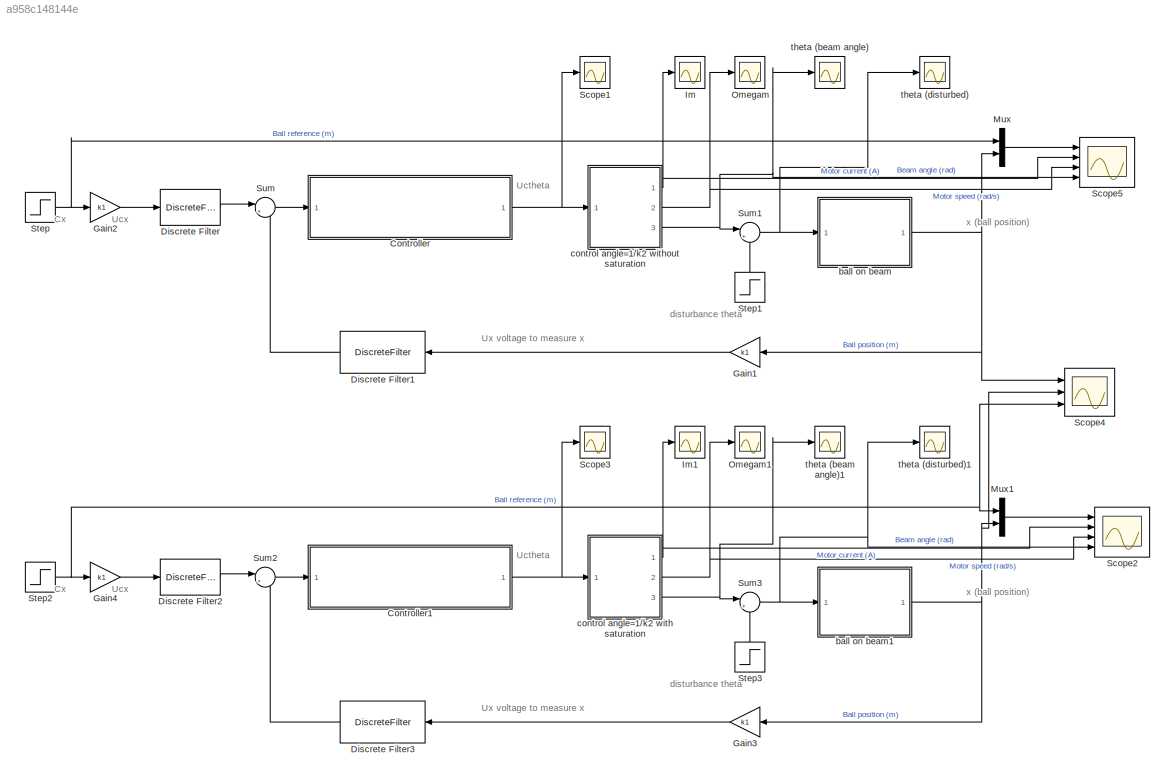
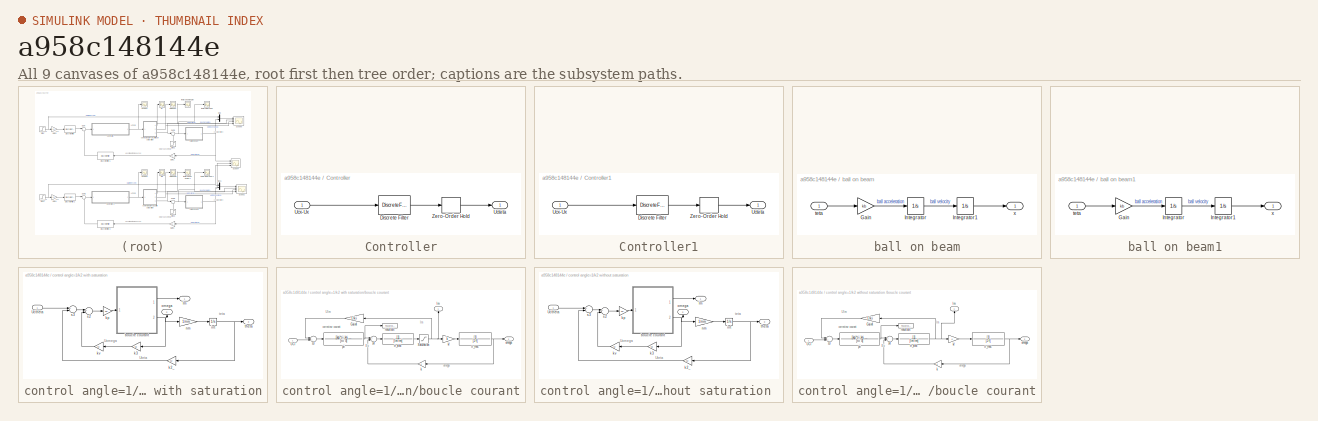
[diagram: thumbnail index - all 9 canvases of the model, root first then tree order]
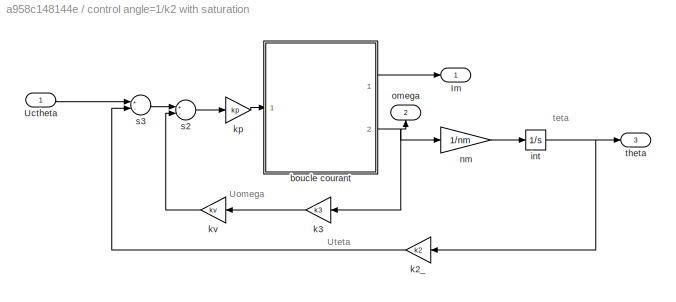
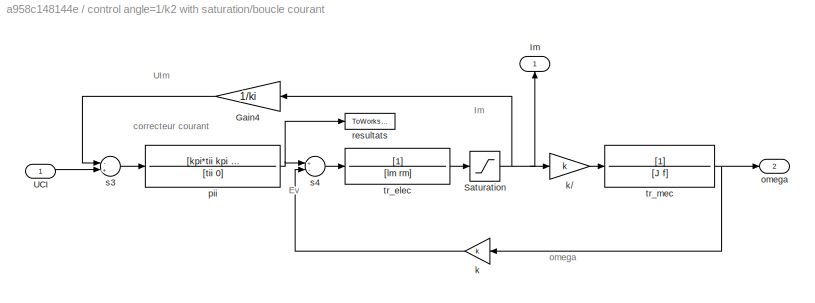
MODEL slx_a958c148144e
KIND model
CONFIG AbsTol = auto
CONFIG EnableMultiTasking = off
CONFIG FixedStep = auto
CONFIG MaxStep = auto
CONFIG MinStep = auto
CONFIG RelTol = 1e-3
CONFIG SampleTimeConstraint = Unconstrained
CONFIG Solver = VariableStepAuto
CONFIG SolverName = VariableStepAuto
CONFIG StartTime = 0.0
CONFIG StopTime = 20
BLOCK [SubSystem] Controller
  Ports = [1, 1]
  RequestExecContextInheritance = off
BLOCK [DiscreteFilter] Controller/Discrete Filter
  Denominator = [1 (s1-1) -s1]
  InputPortMap = u0
  Ports = [1, 1]
  SampleTime = Te
BLOCK [Outport] Controller/Ucteta
  IconDisplay = Port number
BLOCK [Inport] Controller/Ucx-Ux
  IconDisplay = Port number
BLOCK [ZeroOrderHold] Controller/Zero-Order Hold
  SampleTime = -1
BLOCK [SubSystem] Controller1
  Ports = [1, 1]
  RequestExecContextInheritance = off
BLOCK [DiscreteFilter] Controller1/Discrete Filter
  Denominator = [1 (s1-1) -s1]
  InputPortMap = u0
  Ports = [1, 1]
  SampleTime = Te
BLOCK [Outport] Controller1/Ucteta
  IconDisplay = Port number
BLOCK [Inport] Controller1/Ucx-Ux
  IconDisplay = Port number
BLOCK [ZeroOrderHold] Controller1/Zero-Order Hold
  SampleTime = -1
BLOCK [DiscreteFilter] Discrete Filter
  Denominator = [1]
  InputPortMap = u0
  Numerator = [T]
  Ports = [1, 1]
BLOCK [DiscreteFilter] Discrete Filter1
  Denominator = [1]
  InputPortMap = u0
  Numerator = [r0 r1 r2]
  Ports = [1, 1]
BLOCK [DiscreteFilter] Discrete Filter2
  Denominator = [1]
  InputPortMap = u0
  Numerator = [T]
  Ports = [1, 1]
BLOCK [DiscreteFilter] Discrete Filter3
  Denominator = [1]
  InputPortMap = u0
  Numerator = [r0 r1 r2]
  Ports = [1, 1]
BLOCK [Gain] Gain1
  Gain = k1
BLOCK [Gain] Gain2
  Gain = k1
BLOCK [Gain] Gain3
  Gain = k1
BLOCK [Gain] Gain4
  Gain = k1
BLOCK [Scope] Im
  Floating = off
  NumInputPorts = 1
  Ports = [1]
  ScopeSpecificationString = Simulink.scopes.TimeScopeBlockCfg('CurrentConfiguration', extmgr.ConfigurationSet(extmgr.Configuration('Core','General UI',true),extmgr.Configuration('Core','Source UI',true),extmgr.Configuration('Sources','WiredSimulink',true,'DataLoggingVariableName','ScopeData1'),extmgr.Configuration('Visuals','Time Domain',true,'SerializedDisplays',{struct('MinYLimReal','-25.09806','MaxYLimReal','19.77678','YL...<+1451ch>
BLOCK [Scope] Im1
  Floating = off
  NumInputPorts = 1
  Ports = [1]
  ScopeSpecificationString = Simulink.scopes.TimeScopeBlockCfg('CurrentConfiguration', extmgr.ConfigurationSet(extmgr.Configuration('Core','General UI',true),extmgr.Configuration('Core','Source UI',true),extmgr.Configuration('Sources','WiredSimulink',true,'DataLoggingVariableName','ScopeData1'),extmgr.Configuration('Visuals','Time Domain',true,'SerializedDisplays',{struct('MinYLimReal','-19.91116','MaxYLimReal','19.20046','YL...<+1452ch>
BLOCK [Mux] Mux
  DisplayOption = bar
  Inputs = 2
  Ports = [2, 1]
BLOCK [Mux] Mux1
  DisplayOption = bar
  Inputs = 2
  Ports = [2, 1]
BLOCK [Scope] Omegam
  Floating = off
  NumInputPorts = 1
  Ports = [1]
  ScopeSpecificationString = Simulink.scopes.TimeScopeBlockCfg('CurrentConfiguration', extmgr.ConfigurationSet(extmgr.Configuration('Core','General UI',true),extmgr.Configuration('Core','Source UI',true),extmgr.Configuration('Sources','WiredSimulink',true,'DataLoggingVariableName','ScopeData2'),extmgr.Configuration('Visuals','Time Domain',true,'SerializedDisplays',{struct('MinYLimReal','-15856.38817','MaxYLimReal','10059.9299...<+1435ch>
BLOCK [Scope] Omegam1
  Floating = off
  NumInputPorts = 1
  Ports = [1]
  ScopeSpecificationString = Simulink.scopes.TimeScopeBlockCfg('CurrentConfiguration', extmgr.ConfigurationSet(extmgr.Configuration('Core','General UI',true),extmgr.Configuration('Core','Source UI',true),extmgr.Configuration('Sources','WiredSimulink',true,'DataLoggingVariableName','ScopeData2'),extmgr.Configuration('Visuals','Time Domain',true,'SerializedDisplays',{struct('MinYLimReal','-15856.38817','MaxYLimReal','10059.9299...<+1435ch>
BLOCK [Scope] Scope1
  Floating = off
  NumInputPorts = 1
  Ports = [1]
  ScopeSpecificationString = Simulink.scopes.TimeScopeBlockCfg('CurrentConfiguration', extmgr.ConfigurationSet(extmgr.Configuration('Core','General UI',true,'FigureColor',[0 0 0]),extmgr.Configuration('Core','Source UI',true),extmgr.Configuration('Sources','WiredSimulink',true,'DataLoggingVariableName','ScopeData4'),extmgr.Configuration('Visuals','Time Domain',true,'SerializedDisplays',{struct('MinYLimReal','-2348.83617','Max...<+1575ch>
BLOCK [Scope] Scope2
  Floating = off
  NumInputPorts = 4
  Ports = [4]
  ScopeSpecificationString = Simulink.scopes.TimeScopeBlockCfg('CurrentConfiguration', extmgr.ConfigurationSet(extmgr.Configuration('Core','General UI',true,'FigureColor',[1 1 1]),extmgr.Configuration('Core','Source UI',true),extmgr.Configuration('Sources','WiredSimulink',true,'DataLoggingVariableName','ScopeData2'),extmgr.Configuration('Visuals','Time Domain',true,'SerializedDisplays',{struct('MinYLimReal','-0.01449','MaxYLi...<+4154ch>
BLOCK [Scope] Scope3
  Floating = off
  NumInputPorts = 1
  Ports = [1]
  ScopeSpecificationString = Simulink.scopes.TimeScopeBlockCfg('CurrentConfiguration', extmgr.ConfigurationSet(extmgr.Configuration('Core','General UI',true,'FigureColor',[0 0 0]),extmgr.Configuration('Core','Source UI',true),extmgr.Configuration('Sources','WiredSimulink',true,'DataLoggingVariableName','ScopeData4'),extmgr.Configuration('Visuals','Time Domain',true,'SerializedDisplays',{struct('MinYLimReal','-2348.83617','Max...<+1575ch>
BLOCK [Scope] Scope4
  Floating = off
  NumInputPorts = 3
  Ports = [3]
  ScopeSpecificationString = Simulink.scopes.TimeScopeBlockCfg('CurrentConfiguration', extmgr.ConfigurationSet(extmgr.Configuration('Core','General UI',true,'FigureColor',[0 0 0]),extmgr.Configuration('Core','Source UI',true),extmgr.Configuration('Sources','WiredSimulink',true,'DataLoggingVariableName','ScopeData7'),extmgr.Configuration('Visuals','Time Domain',true,'SerializedDisplays',{struct('MinYLimReal','-0.01449','MaxYLi...<+1612ch>
BLOCK [Scope] Scope5
  Floating = off
  NumInputPorts = 4
  Ports = [4]
  ScopeSpecificationString = Simulink.scopes.TimeScopeBlockCfg('CurrentConfiguration', extmgr.ConfigurationSet(extmgr.Configuration('Core','General UI',true,'FigureColor',[1 1 1]),extmgr.Configuration('Core','Source UI',true),extmgr.Configuration('Sources','WiredSimulink',true,'DataLoggingVariableName','ScopeData1'),extmgr.Configuration('Visuals','Time Domain',true,'SerializedDisplays',{struct('MinYLimReal','-0.01449','MaxYLi...<+4455ch>
BLOCK [Step] Step
  After = 0.1
  SampleTime = 0
BLOCK [Step] Step1
  After = 1*pi/180
  SampleTime = 0
  Time = 10
BLOCK [Step] Step2
  After = 0.1
  SampleTime = 0
BLOCK [Step] Step3
  After = 1*pi/180
  SampleTime = 0
  Time = 10
BLOCK [Sum] Sum
  IconShape = round
  Inputs = |+-
  Ports = [2, 1]
BLOCK [Sum] Sum1
  IconShape = round
  Inputs = |++
  Ports = [2, 1]
BLOCK [Sum] Sum2
  IconShape = round
  Inputs = |+-
  Ports = [2, 1]
BLOCK [Sum] Sum3
  IconShape = round
  Inputs = |++
  Ports = [2, 1]
BLOCK [SubSystem] ball on beam
  Ports = [1, 1]
  RequestExecContextInheritance = off
BLOCK [Gain] ball on beam/Gain
  Gain = kb
  OutDataTypeStr = Inherit: Inherit via internal rule
  ParamDataTypeStr = Inherit: Inherit via internal rule
  SaturateOnIntegerOverflow = off
BLOCK [Integrator] ball on beam/Integrator
  Ports = [1, 1]
BLOCK [Integrator] ball on beam/Integrator1
  Ports = [1, 1]
BLOCK [Inport] ball on beam/teta
  IconDisplay = Port number
BLOCK [Outport] ball on beam/x
  IconDisplay = Port number
BLOCK [SubSystem] ball on beam1
  Ports = [1, 1]
  RequestExecContextInheritance = off
BLOCK [Gain] ball on beam1/Gain
  Gain = kb
  OutDataTypeStr = Inherit: Inherit via internal rule
  ParamDataTypeStr = Inherit: Inherit via internal rule
  SaturateOnIntegerOverflow = off
BLOCK [Integrator] ball on beam1/Integrator
  Ports = [1, 1]
BLOCK [Integrator] ball on beam1/Integrator1
  Ports = [1, 1]
BLOCK [Inport] ball on beam1/teta
  IconDisplay = Port number
BLOCK [Outport] ball on beam1/x
  IconDisplay = Port number
BLOCK [SubSystem] control angle=1//k2 with saturation
  Ports = [1, 3]
  RequestExecContextInheritance = off
BLOCK [Outport] control angle=1//k2 with saturation/Im
  IconDisplay = Port number
BLOCK [Inport] control angle=1//k2 with saturation/Uctheta
  IconDisplay = Port number
BLOCK [SubSystem] control angle=1//k2 with saturation/boucle courant
  Ports = [1, 2]
  RequestExecContextInheritance = off
BLOCK [Gain] control angle=1//k2 with saturation/boucle courant/Gain4
  Gain = 1/ki
BLOCK [Outport] control angle=1//k2 with saturation/boucle courant/Im
  IconDisplay = Port number
BLOCK [Saturate] control angle=1//k2 with saturation/boucle courant/Saturation
  InputPortMap = u0
  LowerLimit = -16
  Ports = [1, 1]
  UpperLimit = 16
BLOCK [Inport] control angle=1//k2 with saturation/boucle courant/UCI
  IconDisplay = Port number
BLOCK [Gain] control angle=1//k2 with saturation/boucle courant/k
  Gain = k
BLOCK [Gain] control angle=1//k2 with saturation/boucle courant/k// 
  Gain = k
BLOCK [Outport] control angle=1//k2 with saturation/boucle courant/omega
  IconDisplay = Port number
  Port = 2
BLOCK [TransferFcn] control angle=1//k2 with saturation/boucle courant/pii
  Denominator = [tii 0]
  Numerator = [kpi*tii kpi ]
BLOCK [ToWorkspace] control angle=1//k2 with saturation/boucle courant/resultats
  MaxDataPoints = 20000
  Ports = [1]
  VariableName = Um1
BLOCK [Sum] control angle=1//k2 with saturation/boucle courant/s3
  Inputs = -+
  Ports = [2, 1]
BLOCK [Sum] control angle=1//k2 with saturation/boucle courant/s4
  Inputs = +-
  Ports = [2, 1]
BLOCK [TransferFcn] control angle=1//k2 with saturation/boucle courant/tr_elec
  Denominator = [lm rm]
BLOCK [TransferFcn] control angle=1//k2 with saturation/boucle courant/tr_mec
  Denominator = [J f]
BLOCK [Integrator] control angle=1//k2 with saturation/int
  Ports = [1, 1]
BLOCK [Gain] control angle=1//k2 with saturation/k2_
  Gain = k2
BLOCK [Gain] control angle=1//k2 with saturation/k3
  Gain = k3
BLOCK [Gain] control angle=1//k2 with saturation/kp
  Gain = kp
BLOCK [Gain] control angle=1//k2 with saturation/kv
  Gain = kv
BLOCK [Gain] control angle=1//k2 with saturation/nm
  Gain = 1/nm
BLOCK [Outport] control angle=1//k2 with saturation/omega
  IconDisplay = Port number
  Port = 2
BLOCK [Sum] control angle=1//k2 with saturation/s2
  Inputs = +-
  Ports = [2, 1]
BLOCK [Sum] control angle=1//k2 with saturation/s3
  Inputs = +-
  Ports = [2, 1]
BLOCK [Outport] control angle=1//k2 with saturation/theta
  IconDisplay = Port number
  Port = 3
BLOCK [SubSystem] control angle=1//k2 without saturation 
  Ports = [1, 3]
  RequestExecContextInheritance = off
BLOCK [Outport] control angle=1//k2 without saturation /Im
  IconDisplay = Port number
BLOCK [Inport] control angle=1//k2 without saturation /Uctheta
  IconDisplay = Port number
BLOCK [SubSystem] control angle=1//k2 without saturation /boucle courant
  Ports = [1, 2]
  RequestExecContextInheritance = off
BLOCK [Gain] control angle=1//k2 without saturation /boucle courant/Gain4
  Gain = 1/ki
BLOCK [Outport] control angle=1//k2 without saturation /boucle courant/Im
  IconDisplay = Port number
BLOCK [Inport] control angle=1//k2 without saturation /boucle courant/UCI
  IconDisplay = Port number
BLOCK [Gain] control angle=1//k2 without saturation /boucle courant/k
  Gain = k
BLOCK [Gain] control angle=1//k2 without saturation /boucle courant/k// 
  Gain = k
BLOCK [Outport] control angle=1//k2 without saturation /boucle courant/omega
  IconDisplay = Port number
  Port = 2
BLOCK [TransferFcn] control angle=1//k2 without saturation /boucle courant/pii
  Denominator = [tii 0]
  Numerator = [kpi*tii kpi ]
BLOCK [ToWorkspace] control angle=1//k2 without saturation /boucle courant/resultats
  MaxDataPoints = 20000
  Ports = [1]
  VariableName = Um
BLOCK [Sum] control angle=1//k2 without saturation /boucle courant/s3
  Inputs = -+
  Ports = [2, 1]
BLOCK [Sum] control angle=1//k2 without saturation /boucle courant/s4
  Inputs = +-
  Ports = [2, 1]
BLOCK [TransferFcn] control angle=1//k2 without saturation /boucle courant/tr_elec
  Denominator = [lm rm]
BLOCK [TransferFcn] control angle=1//k2 without saturation /boucle courant/tr_mec
  Denominator = [J f]
BLOCK [Integrator] control angle=1//k2 without saturation /int
  Ports = [1, 1]
BLOCK [Gain] control angle=1//k2 without saturation /k2_
  Gain = k2
BLOCK [Gain] control angle=1//k2 without saturation /k3
  Gain = k3
BLOCK [Gain] control angle=1//k2 without saturation /kp
  Gain = kp
BLOCK [Gain] control angle=1//k2 without saturation /kv
  Gain = kv
BLOCK [Gain] control angle=1//k2 without saturation /nm
  Gain = 1/nm
BLOCK [Outport] control angle=1//k2 without saturation /omega
  IconDisplay = Port number
  Port = 2
BLOCK [Sum] control angle=1//k2 without saturation /s2
  Inputs = +-
  Ports = [2, 1]
BLOCK [Sum] control angle=1//k2 without saturation /s3
  Inputs = +-
  Ports = [2, 1]
BLOCK [Outport] control angle=1//k2 without saturation /theta
  IconDisplay = Port number
  Port = 3
BLOCK [Scope] theta (beam angle)
  Floating = off
  NumInputPorts = 1
  Ports = [1]
  ScopeSpecificationString = Simulink.scopes.TimeScopeBlockCfg('CurrentConfiguration', extmgr.ConfigurationSet(extmgr.Configuration('Core','General UI',true),extmgr.Configuration('Core','Source UI',true),extmgr.Configuration('Sources','WiredSimulink',true,'DataLoggingVariableName','ScopeData5'),extmgr.Configuration('Visuals','Time Domain',true,'SerializedDisplays',{struct('MinYLimReal','-0.66694','MaxYLimReal','0.80359','YLab...<+1420ch>
BLOCK [Scope] theta (beam angle)1
  Floating = off
  NumInputPorts = 1
  Ports = [1]
  ScopeSpecificationString = Simulink.scopes.TimeScopeBlockCfg('CurrentConfiguration', extmgr.ConfigurationSet(extmgr.Configuration('Core','General UI',true),extmgr.Configuration('Core','Source UI',true),extmgr.Configuration('Sources','WiredSimulink',true,'DataLoggingVariableName','ScopeData5'),extmgr.Configuration('Visuals','Time Domain',true,'SerializedDisplays',{struct('MinYLimReal','-0.66694','MaxYLimReal','0.80359','YLab...<+1420ch>
BLOCK [Scope] theta (disturbed)
  Floating = off
  NumInputPorts = 1
  Ports = [1]
  ScopeSpecificationString = Simulink.scopes.TimeScopeBlockCfg('CurrentConfiguration', extmgr.ConfigurationSet(extmgr.Configuration('Core','General UI',true),extmgr.Configuration('Core','Source UI',true),extmgr.Configuration('Sources','WiredSimulink',true),extmgr.Configuration('Visuals','Time Domain',true,'SerializedDisplays',{struct('MinYLimReal','-0.00456','MaxYLimReal','0.01987','YLabelReal','','MinYLimMag','0.00000','MaxY...<+1364ch>
BLOCK [Scope] theta (disturbed)1
  Floating = off
  NumInputPorts = 1
  Ports = [1]
  ScopeSpecificationString = Simulink.scopes.TimeScopeBlockCfg('CurrentConfiguration', extmgr.ConfigurationSet(extmgr.Configuration('Core','General UI',true),extmgr.Configuration('Core','Source UI',true),extmgr.Configuration('Sources','WiredSimulink',true,'DataLoggingVariableName','ScopeData6'),extmgr.Configuration('Visuals','Time Domain',true,'SerializedDisplays',{struct('MinYLimReal','-0.00456','MaxYLimReal','0.01987','YLab...<+1403ch>
ANNOTATION (root): Cx
ANNOTATION (root): Uctheta
ANNOTATION (root): Ucx
ANNOTATION (root): Ux voltage to measure x
ANNOTATION (root): disturbance theta
ANNOTATION (root): x (ball position)
ANNOTATION control angle=1//k2 with saturation: Uomega
ANNOTATION control angle=1//k2 with saturation: Uteta
ANNOTATION control angle=1//k2 with saturation: teta
ANNOTATION control angle=1//k2 with saturation/boucle courant: Ev
ANNOTATION control angle=1//k2 with saturation/boucle courant: Im
ANNOTATION control angle=1//k2 with saturation/boucle courant: UIm
ANNOTATION control angle=1//k2 with saturation/boucle courant: correcteur courant
ANNOTATION control angle=1//k2 with saturation/boucle courant: omega
ANNOTATION control angle=1//k2 without saturation : Uomega
ANNOTATION control angle=1//k2 without saturation : Uteta
ANNOTATION control angle=1//k2 without saturation : teta
ANNOTATION control angle=1//k2 without saturation /boucle courant: Ev
ANNOTATION control angle=1//k2 without saturation /boucle courant: Im
ANNOTATION control angle=1//k2 without saturation /boucle courant: UIm
ANNOTATION control angle=1//k2 without saturation /boucle courant: correcteur courant
ANNOTATION control angle=1//k2 without saturation /boucle courant: omega
LINE Controller/Discrete Filter:1 -> Controller/Zero-Order Hold:1
LINE Controller/Ucx-Ux:1 -> Controller/Discrete Filter:1
LINE Controller/Zero-Order Hold:1 -> Controller/Ucteta:1
LINE Controller1/Discrete Filter:1 -> Controller1/Zero-Order Hold:1
LINE Controller1/Ucx-Ux:1 -> Controller1/Discrete Filter:1
LINE Controller1/Zero-Order Hold:1 -> Controller1/Ucteta:1
NET Controller1:1 -> Scope3:1, control angle=1//k2 with saturation:1
NET Controller:1 -> Scope1:1, control angle=1//k2 without saturation :1
LINE Discrete Filter1:1 -> Sum:2
LINE Discrete Filter2:1 -> Sum2:1
LINE Discrete Filter3:1 -> Sum2:2
LINE Discrete Filter:1 -> Sum:1
LINE Gain1:1 -> Discrete Filter1:1
LINE Gain2:1 -> Discrete Filter:1
LINE Gain3:1 -> Discrete Filter3:1
LINE Gain4:1 -> Discrete Filter2:1
LINE Mux1:1 -> Scope2:1
LINE Mux:1 -> Scope5:1
LINE Step1:1 -> Sum1:2
NET Step2:1 -> Gain4:1, Mux1:1, Scope4:3
LINE Step3:1 -> Sum3:2
NET Step:1 -> Gain2:1, Mux:1
NET Sum1:1 -> ball on beam:1, theta (disturbed):1
LINE Sum2:1 -> Controller1:1
NET Sum3:1 -> Scope2:4, ball on beam1:1, theta (disturbed)1:1
LINE Sum:1 -> Controller:1
LINE ball on beam/Gain:1 -> ball on beam/Integrator:1
LINE ball on beam/Integrator1:1 -> ball on beam/x:1
LINE ball on beam/Integrator:1 -> ball on beam/Integrator1:1
LINE ball on beam/teta:1 -> ball on beam/Gain:1
LINE ball on beam1/Gain:1 -> ball on beam1/Integrator:1
LINE ball on beam1/Integrator1:1 -> ball on beam1/x:1
LINE ball on beam1/Integrator:1 -> ball on beam1/Integrator1:1
LINE ball on beam1/teta:1 -> ball on beam1/Gain:1
NET ball on beam1:1 -> Gain3:1, Mux1:2, Scope4:2
NET ball on beam:1 -> Gain1:1, Mux:2, Scope4:1
LINE control angle=1//k2 with saturation/Uctheta:1 -> control angle=1//k2 with saturation/s3:1
LINE control angle=1//k2 with saturation/boucle courant/Gain4:1 -> control angle=1//k2 with saturation/boucle courant/s3:1
NET control angle=1//k2 with saturation/boucle courant/Saturation:1 -> control angle=1//k2 with saturation/boucle courant/Gain4:1, control angle=1//k2 with saturation/boucle courant/Im:1, control angle=1//k2 with saturation/boucle courant/k// :1
LINE control angle=1//k2 with saturation/boucle courant/UCI:1 -> control angle=1//k2 with saturation/boucle courant/s3:2
LINE control angle=1//k2 with saturation/boucle courant/k// :1 -> control angle=1//k2 with saturation/boucle courant/tr_mec:1
LINE control angle=1//k2 with saturation/boucle courant/k:1 -> control angle=1//k2 with saturation/boucle courant/s4:2
NET control angle=1//k2 with saturation/boucle courant/pii:1 -> control angle=1//k2 with saturation/boucle courant/resultats:1, control angle=1//k2 with saturation/boucle courant/s4:1
LINE control angle=1//k2 with saturation/boucle courant/s3:1 -> control angle=1//k2 with saturation/boucle courant/pii:1
LINE control angle=1//k2 with saturation/boucle courant/s4:1 -> control angle=1//k2 with saturation/boucle courant/tr_elec:1
LINE control angle=1//k2 with saturation/boucle courant/tr_elec:1 -> control angle=1//k2 with saturation/boucle courant/Saturation:1
NET control angle=1//k2 with saturation/boucle courant/tr_mec:1 -> control angle=1//k2 with saturation/boucle courant/k:1, control angle=1//k2 with saturation/boucle courant/omega:1
LINE control angle=1//k2 with saturation/boucle courant:1 -> control angle=1//k2 with saturation/Im:1
NET control angle=1//k2 with saturation/boucle courant:2 -> control angle=1//k2 with saturation/k3:1, control angle=1//k2 with saturation/nm:1, control angle=1//k2 with saturation/omega:1
NET control angle=1//k2 with saturation/int:1 -> control angle=1//k2 with saturation/k2_:1, control angle=1//k2 with saturation/theta:1
LINE control angle=1//k2 with saturation/k2_:1 -> control angle=1//k2 with saturation/s3:2
LINE control angle=1//k2 with saturation/k3:1 -> control angle=1//k2 with saturation/kv:1
LINE control angle=1//k2 with saturation/kp:1 -> control angle=1//k2 with saturation/boucle courant:1
LINE control angle=1//k2 with saturation/kv:1 -> control angle=1//k2 with saturation/s2:2
LINE control angle=1//k2 with saturation/nm:1 -> control angle=1//k2 with saturation/int:1
LINE control angle=1//k2 with saturation/s2:1 -> control angle=1//k2 with saturation/kp:1
LINE control angle=1//k2 with saturation/s3:1 -> control angle=1//k2 with saturation/s2:1
NET control angle=1//k2 with saturation:1 -> Im1:1, Scope2:2
NET control angle=1//k2 with saturation:2 -> Omegam1:1, Scope2:3
NET control angle=1//k2 with saturation:3 -> Sum3:1, theta (beam angle)1:1
LINE control angle=1//k2 without saturation /Uctheta:1 -> control angle=1//k2 without saturation /s3:1
LINE control angle=1//k2 without saturation /boucle courant/Gain4:1 -> control angle=1//k2 without saturation /boucle courant/s3:1
LINE control angle=1//k2 without saturation /boucle courant/UCI:1 -> control angle=1//k2 without saturation /boucle courant/s3:2
LINE control angle=1//k2 without saturation /boucle courant/k// :1 -> control angle=1//k2 without saturation /boucle courant/tr_mec:1
LINE control angle=1//k2 without saturation /boucle courant/k:1 -> control angle=1//k2 without saturation /boucle courant/s4:2
NET control angle=1//k2 without saturation /boucle courant/pii:1 -> control angle=1//k2 without saturation /boucle courant/resultats:1, control angle=1//k2 without saturation /boucle courant/s4:1
LINE control angle=1//k2 without saturation /boucle courant/s3:1 -> control angle=1//k2 without saturation /boucle courant/pii:1
LINE control angle=1//k2 without saturation /boucle courant/s4:1 -> control angle=1//k2 without saturation /boucle courant/tr_elec:1
NET control angle=1//k2 without saturation /boucle courant/tr_elec:1 -> control angle=1//k2 without saturation /boucle courant/Gain4:1, control angle=1//k2 without saturation /boucle courant/Im:1, control angle=1//k2 without saturation /boucle courant/k// :1
NET control angle=1//k2 without saturation /boucle courant/tr_mec:1 -> control angle=1//k2 without saturation /boucle courant/k:1, control angle=1//k2 without saturation /boucle courant/omega:1
LINE control angle=1//k2 without saturation /boucle courant:1 -> control angle=1//k2 without saturation /Im:1
NET control angle=1//k2 without saturation /boucle courant:2 -> control angle=1//k2 without saturation /k3:1, control angle=1//k2 without saturation /nm:1, control angle=1//k2 without saturation /omega:1
NET control angle=1//k2 without saturation /int:1 -> control angle=1//k2 without saturation /k2_:1, control angle=1//k2 without saturation /theta:1
LINE control angle=1//k2 without saturation /k2_:1 -> control angle=1//k2 without saturation /s3:2
LINE control angle=1//k2 without saturation /k3:1 -> control angle=1//k2 without saturation /kv:1
LINE control angle=1//k2 without saturation /kp:1 -> control angle=1//k2 without saturation /boucle courant:1
LINE control angle=1//k2 without saturation /kv:1 -> control angle=1//k2 without saturation /s2:2
LINE control angle=1//k2 without saturation /nm:1 -> control angle=1//k2 without saturation /int:1
LINE control angle=1//k2 without saturation /s2:1 -> control angle=1//k2 without saturation /kp:1
LINE control angle=1//k2 without saturation /s3:1 -> control angle=1//k2 without saturation /s2:1
NET control angle=1//k2 without saturation :1 -> Im:1, Scope5:2
NET control angle=1//k2 without saturation :2 -> Omegam:1, Scope5:3
NET control angle=1//k2 without saturation :3 -> Scope5:4, Sum1:1, theta (beam angle):1
note: NET lines group one-source signal fan-out (src -> all destinations, sorted); 1:1 wires keep LINE
